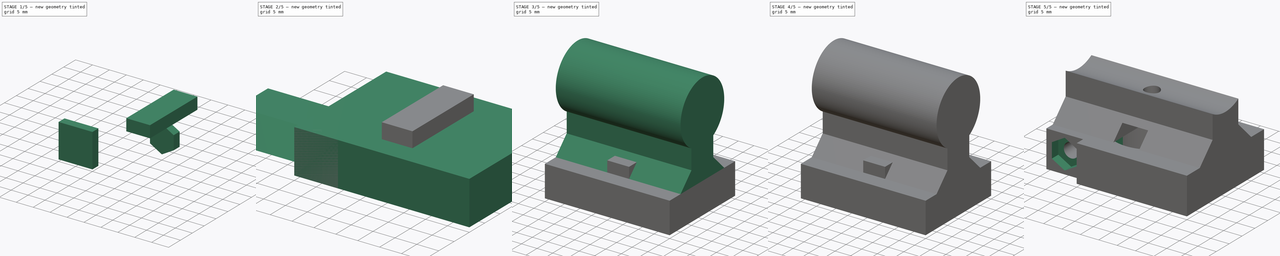
[diagram: build sequence overview — one tinted view per stage of 5, left to right]
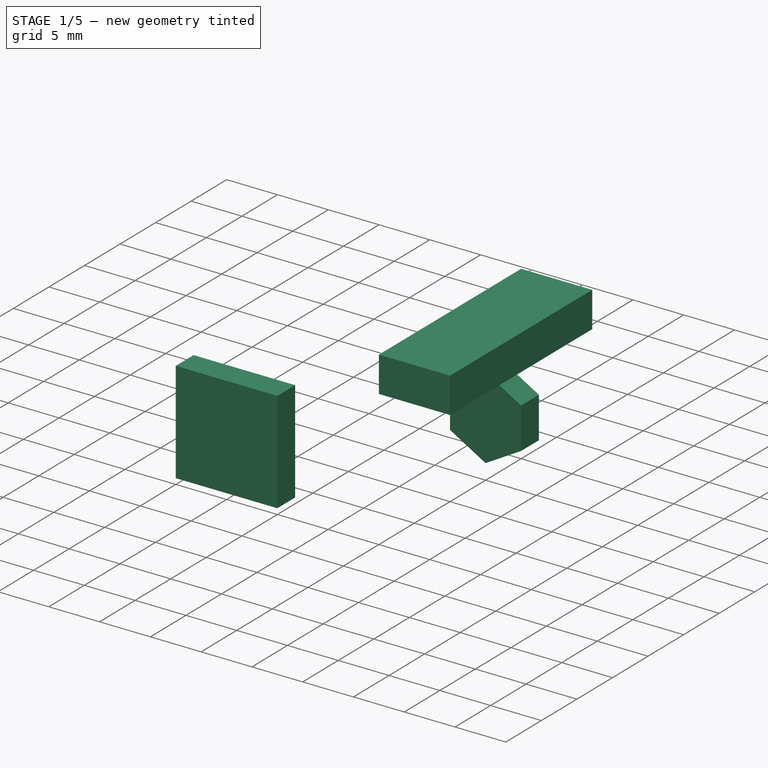
[diagram: stage 1 of 5 — iso view after this stage's code; geometry added in this stage tinted green]
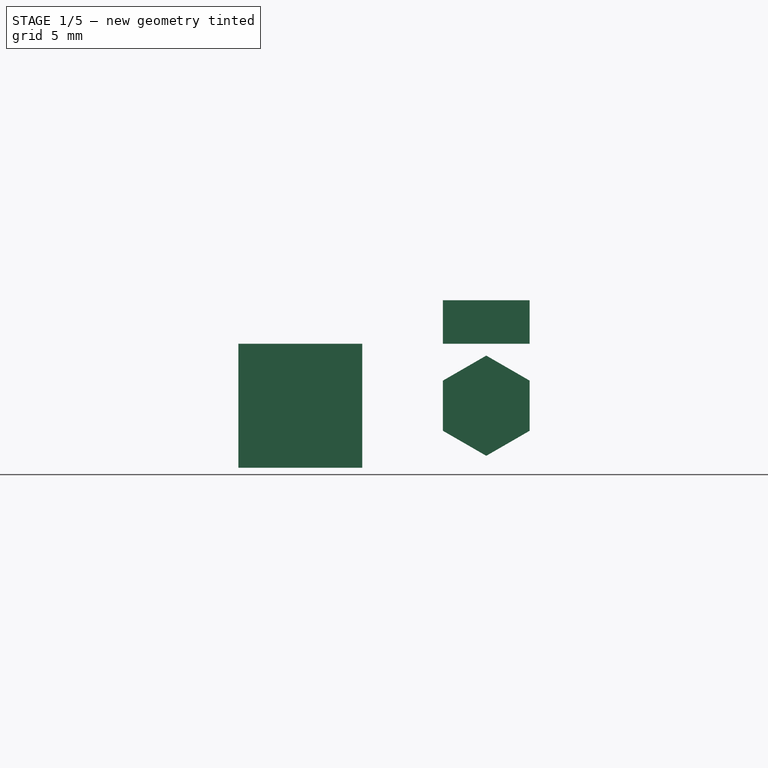
[diagram: stage 1 of 5 — front view after this stage's code; geometry added in this stage tinted green]
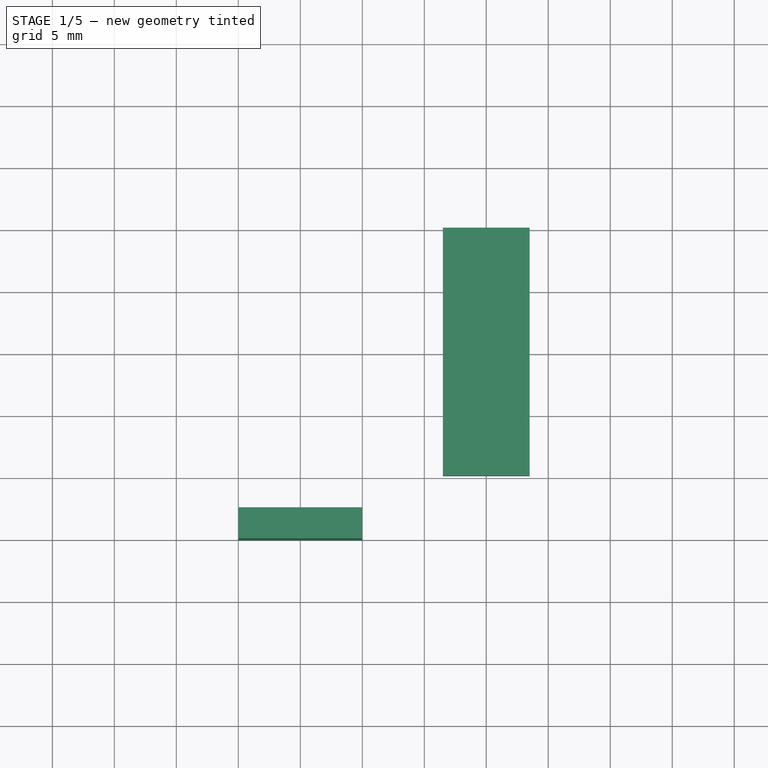
[diagram: stage 1 of 5 — top view after this stage's code; geometry added in this stage tinted green]
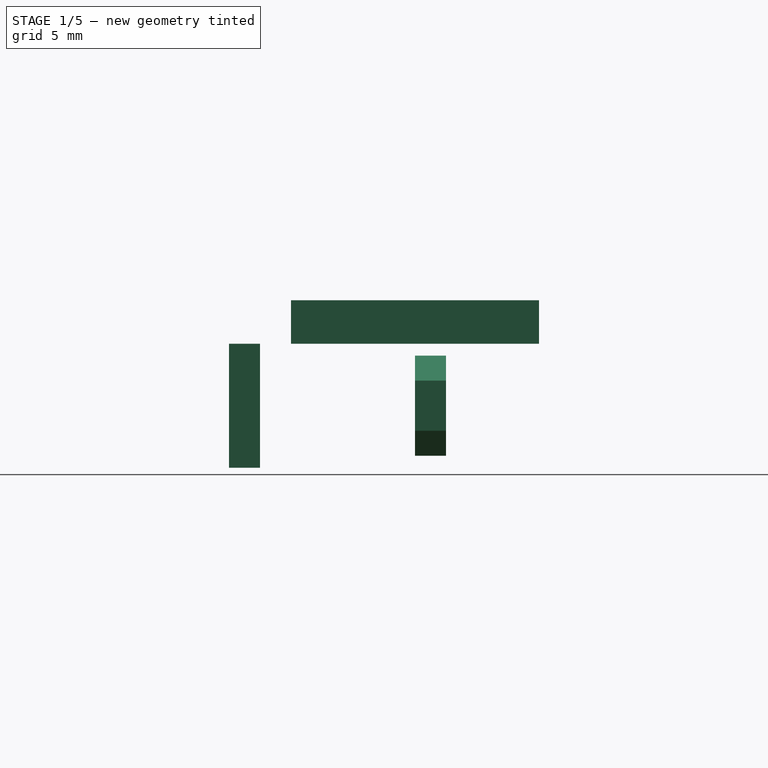
[diagram: stage 1 of 5 — right view after this stage's code; geometry added in this stage tinted green]
FCSTD DOCUMENT  (FreeCAD 0.17R13522 (Git))
Label: connector-sleeper
License: All rights reserved
LicenseURL: http://en.wikipedia.org/wiki/All_rights_reserved
objects: Part::Box×6, Part::Cylinder×4, Sketcher::SketchObject×2, PartDesign::Pad×2, PartDesign::Body×2, Part::MultiFuse×2, Part::Cut×1
note: 21 computed .brp shape members not serialized (recipe doc carries the construction recipe); baked Part::Feature solids carry a one-line shape summary decoded from their .brp

FEATURE [Part::Box] Box009  label="Screw Gap002"
  AttacherType = Attacher::AttachEngine3D
  Height = 10
  Length = 10
  Placement = pos=(-20,-15,-5) rot=(0,0,1;0rad)
  Width = 2.5
FEATURE [Sketcher::SketchObject] Sketch
  MapMode = 5
  Placement = pos=(0,0,0) rot=(1,0,0;1.5708rad)
  Support = -> [XZ_Plane]
  sketch-geometry (7):
    g0: LineSegment StartX=0 StartY=-4.04145 StartZ=0 EndX=3.5 EndY=-2.02073 EndZ=0
    g1: LineSegment StartX=3.5 StartY=-2.02073 StartZ=0 EndX=3.5 EndY=2.02073 EndZ=0
    g2: LineSegment StartX=3.5 StartY=2.02073 StartZ=0 EndX=0 EndY=4.04145 EndZ=0
    g3: LineSegment StartX=0 StartY=4.04145 StartZ=0 EndX=-3.5 EndY=2.02073 EndZ=0
    g4: LineSegment StartX=-3.5 StartY=2.02073 StartZ=0 EndX=-3.5 EndY=-2.02073 EndZ=0
    g5: LineSegment StartX=-3.5 StartY=-2.02073 StartZ=0 EndX=0 EndY=-4.04145 EndZ=0
    g6: Circle [constr] CenterX=0 CenterY=0 CenterZ=0 NormalX=0 NormalY=0 NormalZ=1 AngleXU=0 Radius=4.04145
  constraints (17):
    c: Coincident(g0,g1)
    c: Coincident(g1,g2)
    c: Coincident(g2,g3)
    c: Coincident(g3,g4)
    c: Coincident(g4,g5)
    c: Coincident(g5,g0)
    c: Equal(g0, g1-g5) x5
    c: PointOnObject(g0,g6)
    c: PointOnObject(g1,g6)
    c: PointOnObject(g2,g6)
    c: PointOnObject(g3,g6)
    c: PointOnObject(g4,g6)
    c: PointOnObject(g5,g6)
    c: PointOnObject(g6,g-1)
    c: Coincident(g-1,g6)
    c: DistanceY(g3,g1) = 0
    c: DistanceX(g3,g1) = 7
FEATURE [PartDesign::Pad] Pad
  Length = 2.5
  Length2 = 100
  Placement = pos=(0,0,0) rot=(1,0,0;1.5708rad)
  Profile = -> Sketch
  Reversed = true
  Type = 0
FEATURE [PartDesign::Body] Body
  Group = -> [Sketch,Pad]
  Origin = -> Origin
  Placement = pos=(-15,-12.5,0) rot=(0,0,1;0rad)
  Tip = -> Pad
FEATURE [Part::Box] Box010  label="Cube"
  AttacherType = Attacher::AttachEngine3D
  Height = 3.5
  Length = 7
  Placement = pos=(-3.5,-10,5) rot=(0,0,1;0rad)
  Width = 20
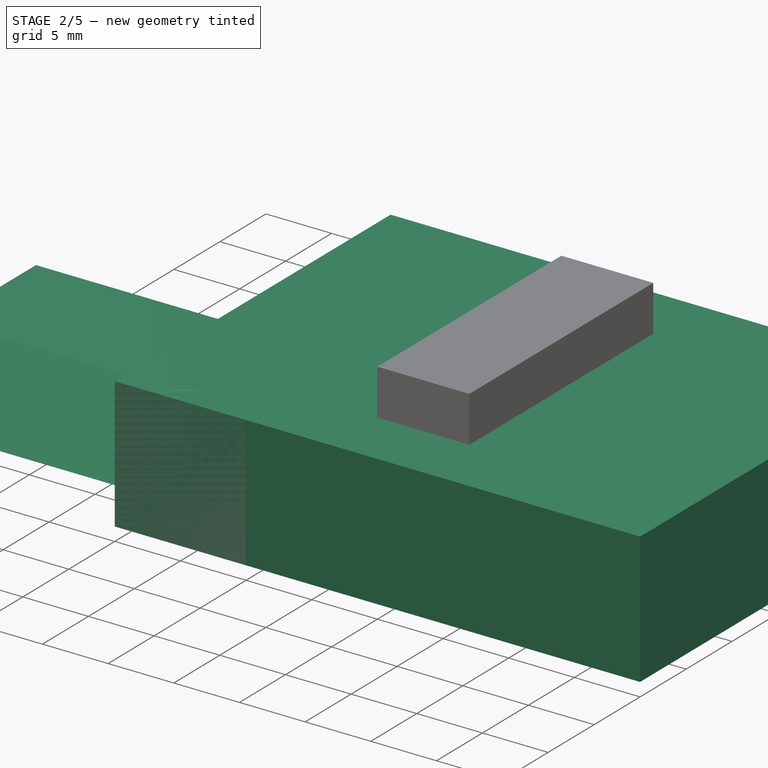
[diagram: stage 2 of 5 — iso view after this stage's code; geometry added in this stage tinted green]
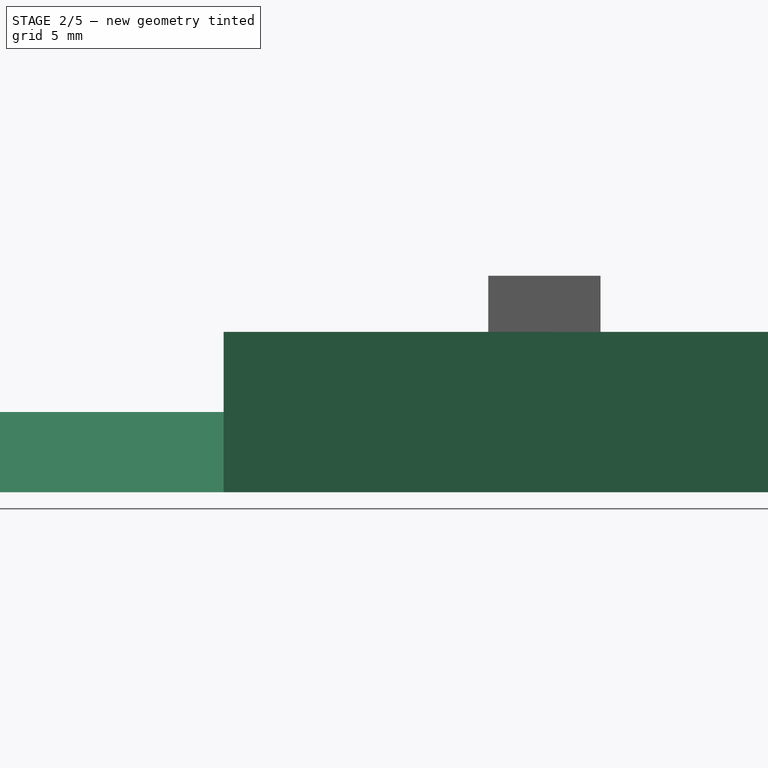
[diagram: stage 2 of 5 — front view after this stage's code; geometry added in this stage tinted green]
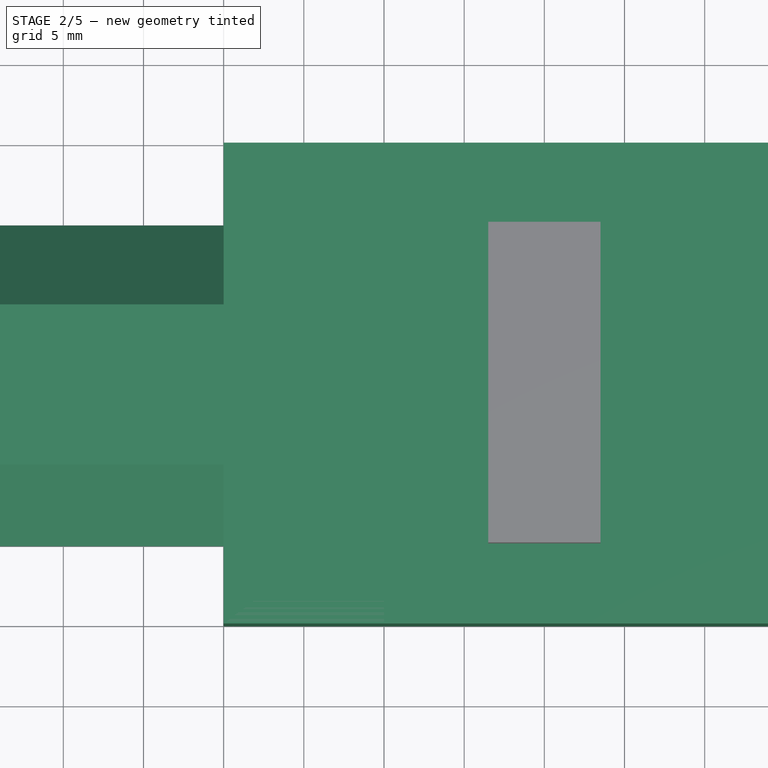
[diagram: stage 2 of 5 — top view after this stage's code; geometry added in this stage tinted green]
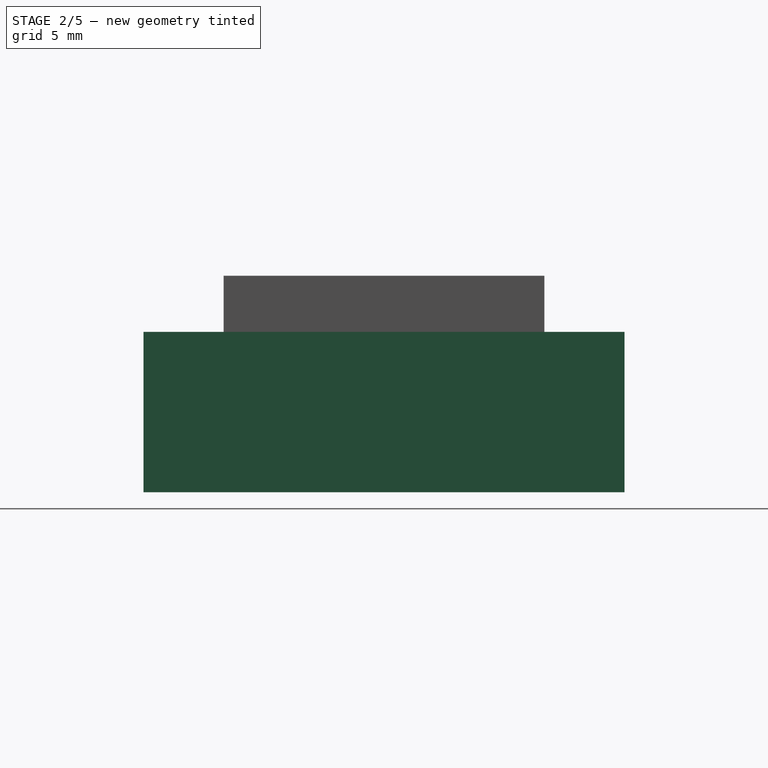
[diagram: stage 2 of 5 — right view after this stage's code; geometry added in this stage tinted green]
FEATURE [Sketcher::SketchObject] Sketch001
  MapMode = 5
  Placement = pos=(0,0,0) rot=(0.57735,0.57735,0.57735;2.0944rad)
  Support = -> [YZ_Plane001]
  sketch-geometry (4):
    g0: LineSegment StartX=5 StartY=0 StartZ=0 EndX=10 EndY=-5 EndZ=0
    g1: LineSegment StartX=10 StartY=-5 StartZ=0 EndX=-10 EndY=-5 EndZ=0
    g2: LineSegment StartX=-10 StartY=-5 StartZ=0 EndX=-5 EndY=0 EndZ=0
    g3: LineSegment StartX=-5 StartY=0 StartZ=0 EndX=5 EndY=0 EndZ=0
  constraints (12):
    c: Coincident(g1,g2)
    c: Coincident(g2,g3)
    c: Coincident(g0,g3)
    c: Horizontal(g3)
    c: Perpendicular(g0,g2)
    c: Angle(g0,g1) = 0.785398
    c: DistanceX(g2,g0) = 10
    c: Coincident(g1,g0)
    c: DistanceY(g0,g1) = 0
    c: DistanceY(g0,g0) = 5
    c: DistanceY(g0,g-1) = 0
    c: DistanceX(g-1,g0) = 5
FEATURE [PartDesign::Pad] Pad001
  Length = 40
  Length2 = 100
  Placement = pos=(0,0,0) rot=(0.57735,0.57735,0.57735;2.0944rad)
  Profile = -> Sketch001
  Reversed = true
  Type = 0
FEATURE [PartDesign::Body] Body001  label="Rail Support Prism"
  Group = -> [Sketch001,Pad001]
  Origin = -> Origin001
  Placement = pos=(20,0,10) rot=(0,0,1;0rad)
  Tip = -> Pad001
FEATURE [Part::Box] Box007  label="Base Cube"
  AttacherType = Attacher::AttachEngine3D
  Height = 10
  Length = 40
  Placement = pos=(-20,-15,-5) rot=(0,0,1;0rad)
  Width = 30
FEATURE [Part::Box] Box008  label="Screw Gap001"
  AttacherType = Attacher::AttachEngine3D
  Height = 10
  Length = 10
  Placement = pos=(-20,12.5,-5) rot=(0,0,1;0rad)
  Width = 2.5
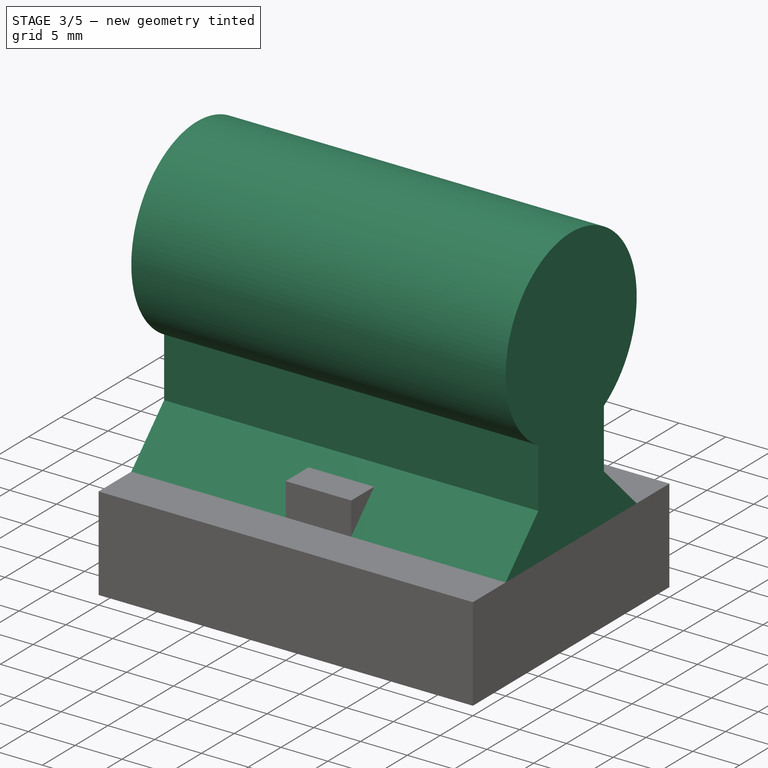
[diagram: stage 3 of 5 — iso view after this stage's code; geometry added in this stage tinted green]
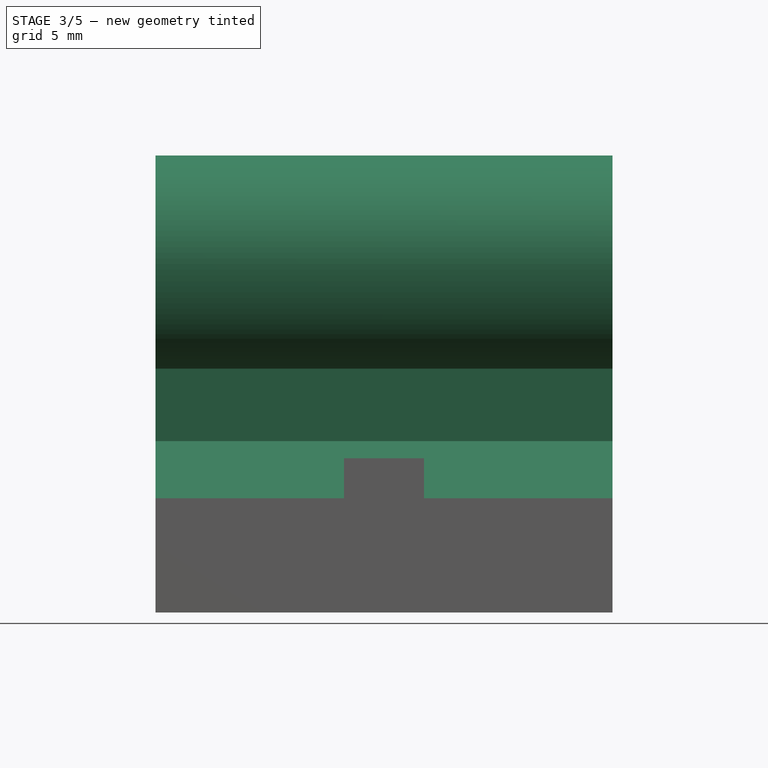
[diagram: stage 3 of 5 — front view after this stage's code; geometry added in this stage tinted green]
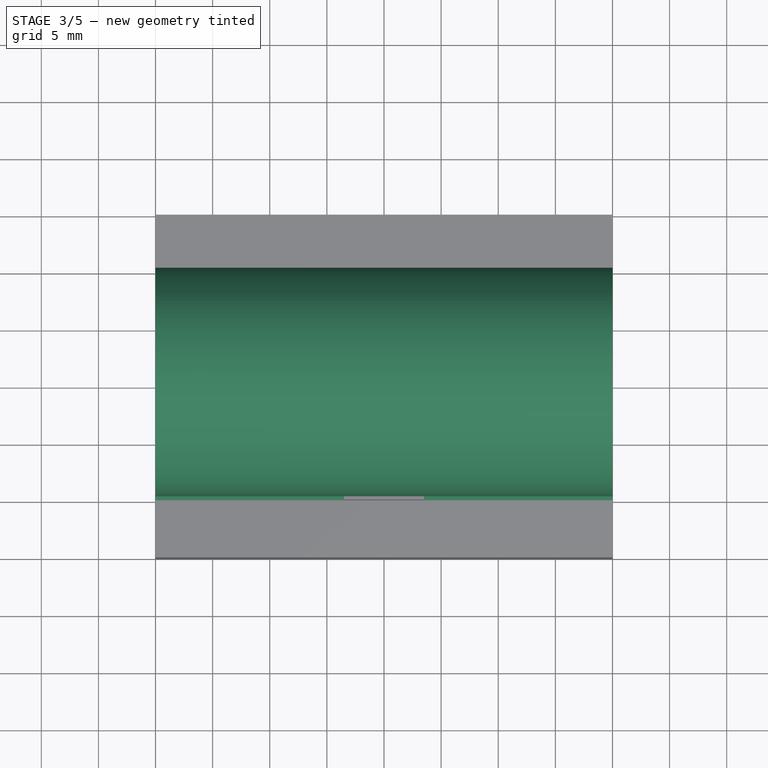
[diagram: stage 3 of 5 — top view after this stage's code; geometry added in this stage tinted green]
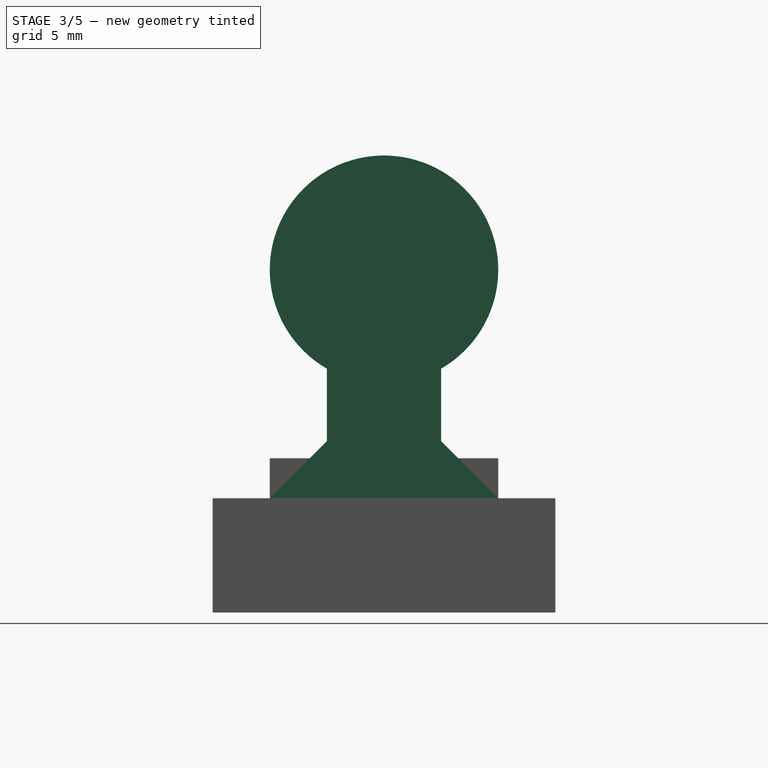
[diagram: stage 3 of 5 — right view after this stage's code; geometry added in this stage tinted green]
FEATURE [Part::Box] Box  label="Rail Support Cube"
  AttacherType = Attacher::AttachEngine3D
  Height = 12
  Length = 40
  Placement = pos=(-20,-5,5) rot=(0,0,1;0rad)
  Width = 10
FEATURE [Part::Cylinder] Cylinder007  label="Rail"
  Angle = 360
  AttacherType = Attacher::AttachEngine3D
  Height = 40
  Placement = pos=(20,0,25) rot=(0.57735,0.57735,-0.57735;4.18879rad)
  Radius = 10
FEATURE [Part::MultiFuse] Fusion002  label="Positive Fusion"
  Shapes = -> [Box,Body001,Box007]
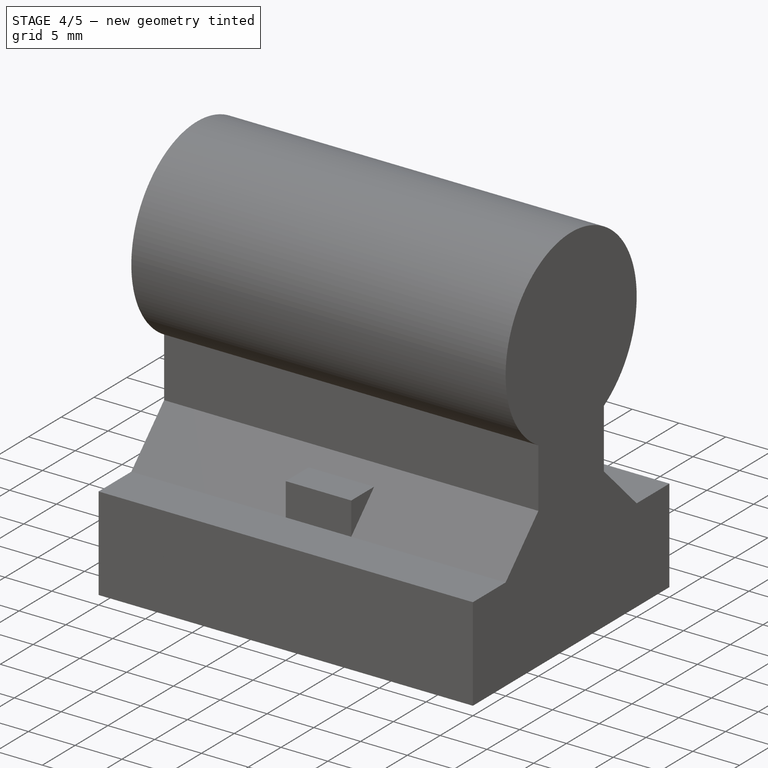
[diagram: stage 4 of 5 — iso view after this stage's code; geometry added in this stage tinted green]
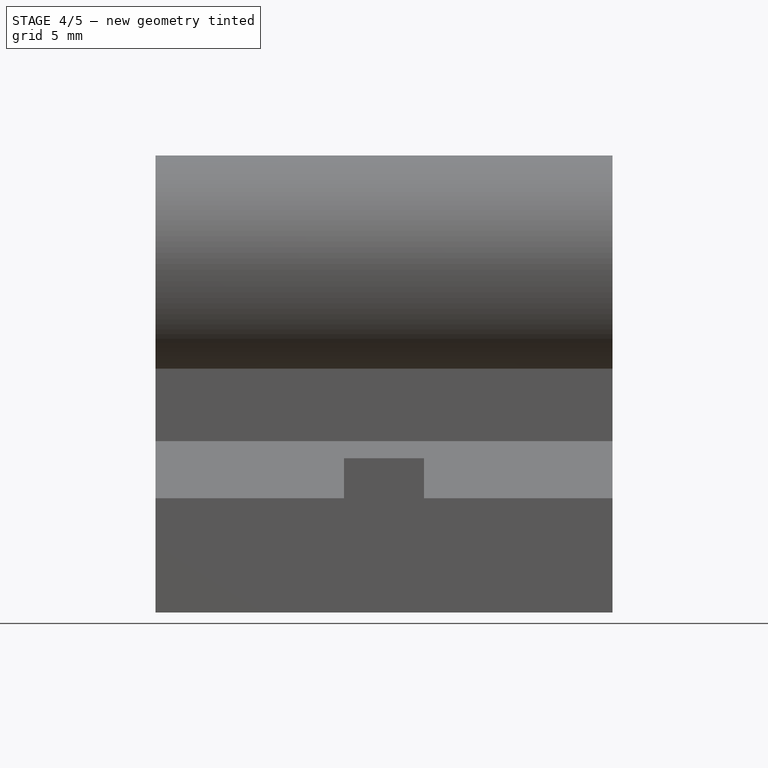
[diagram: stage 4 of 5 — front view after this stage's code; geometry added in this stage tinted green]
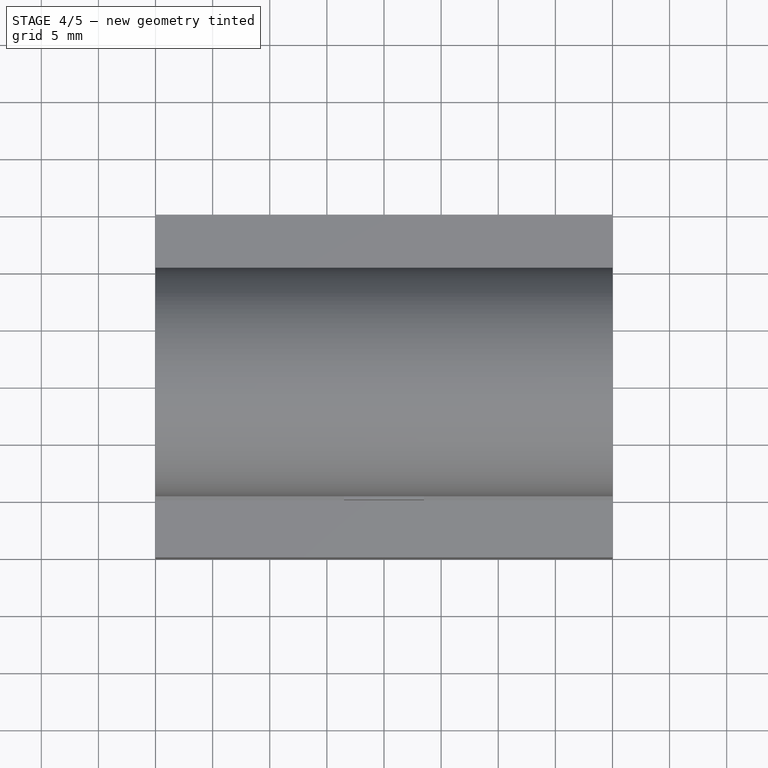
[diagram: stage 4 of 5 — top view after this stage's code; geometry added in this stage tinted green]
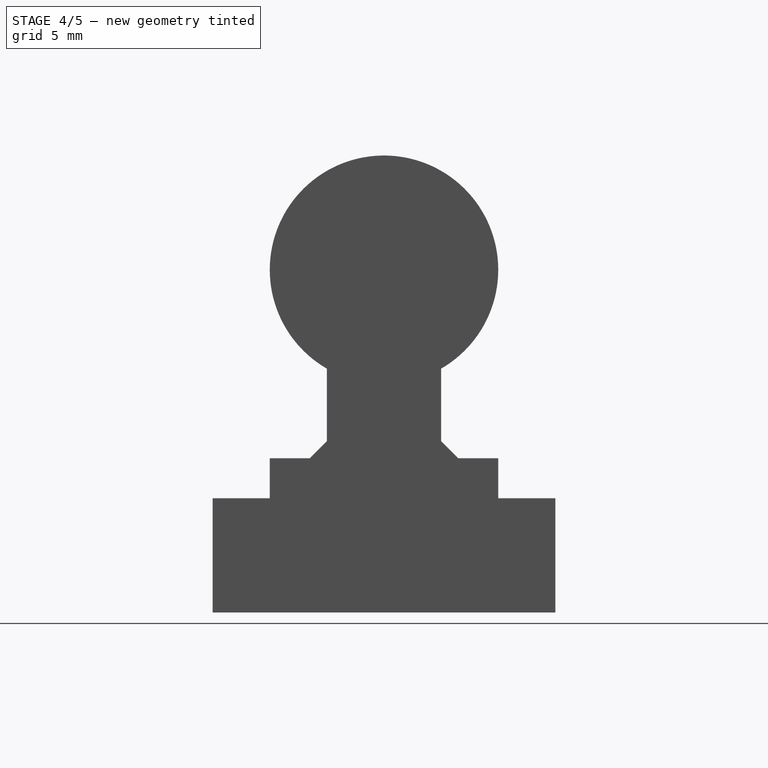
[diagram: stage 4 of 5 — right view after this stage's code; geometry added in this stage tinted green]
FEATURE [Part::Cylinder] Cylinder001  label="Pipe"
  Angle = 360
  AttacherType = Attacher::AttachEngine3D
  Height = 10
  Placement = pos=(0,0,-5) rot=(0,0,1;0rad)
  Radius = 10
FEATURE [Part::Cylinder] Cylinder003  label="Screw"
  Angle = 360
  AttacherType = Attacher::AttachEngine3D
  Height = 30
  Placement = pos=(-15,-15,0) rot=(-1,0,0;1.5708rad)
  Radius = 2
FEATURE [Part::Cylinder] Cylinder  label="Rail Screw"
  Angle = 360
  AttacherType = Attacher::AttachEngine3D
  Height = 30
  Placement = pos=(0,0,-5) rot=(0,0,1;0rad)
  Radius = 2
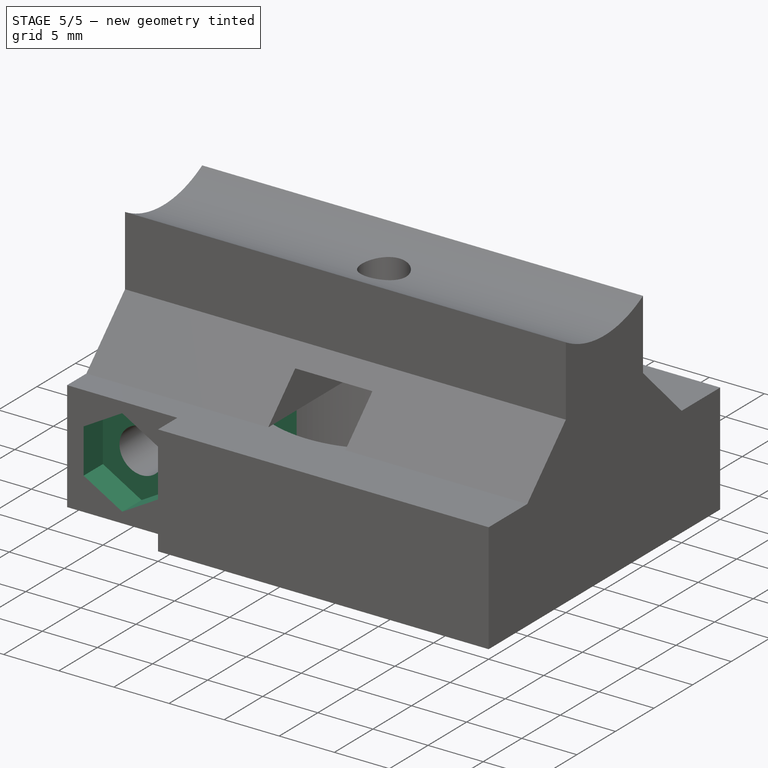
[diagram: stage 5 of 5 — iso view after this stage's code; geometry added in this stage tinted green]
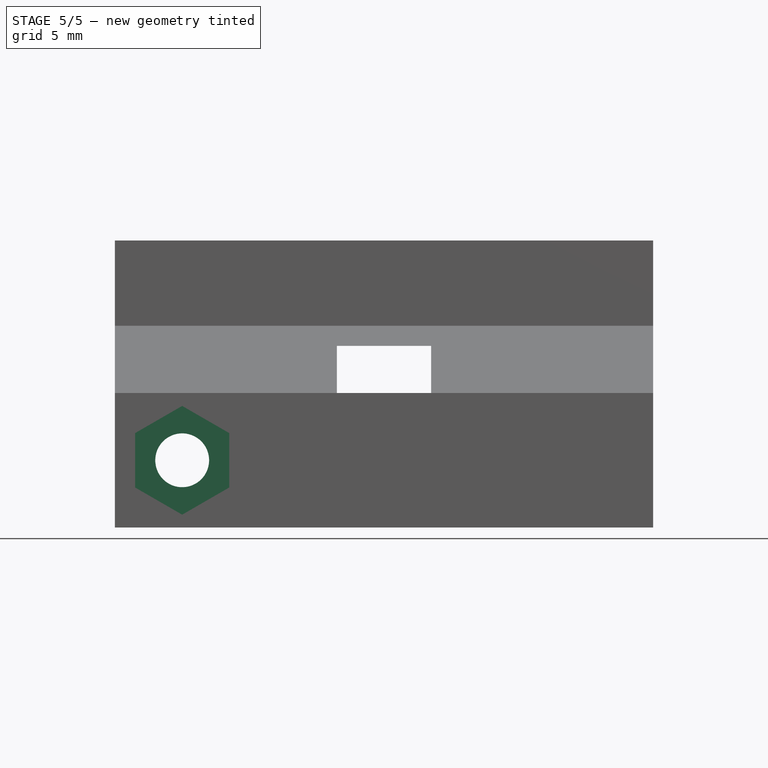
[diagram: stage 5 of 5 — front view after this stage's code; geometry added in this stage tinted green]
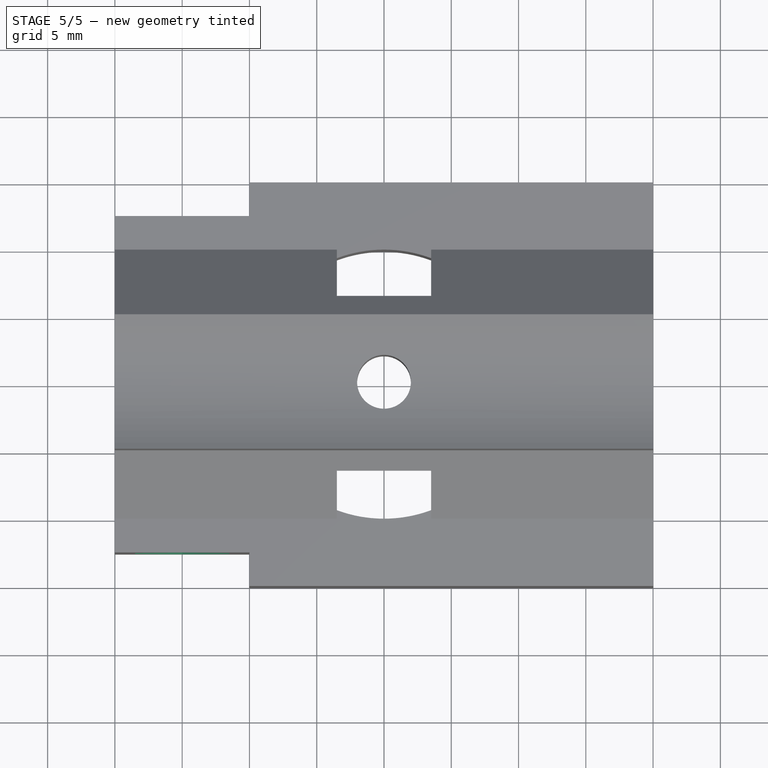
[diagram: stage 5 of 5 — top view after this stage's code; geometry added in this stage tinted green]
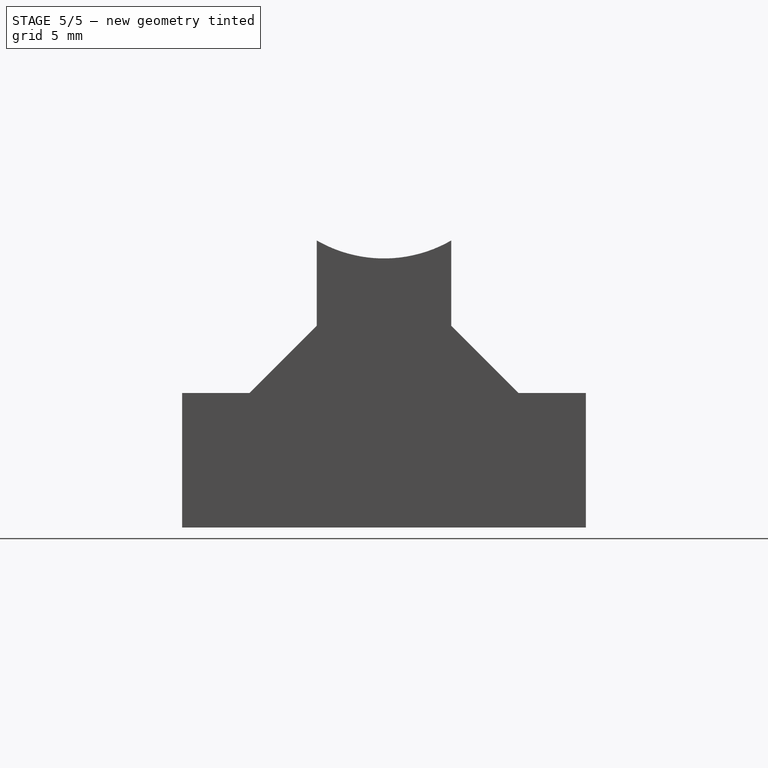
[diagram: stage 5 of 5 — right view after this stage's code; geometry added in this stage tinted green]
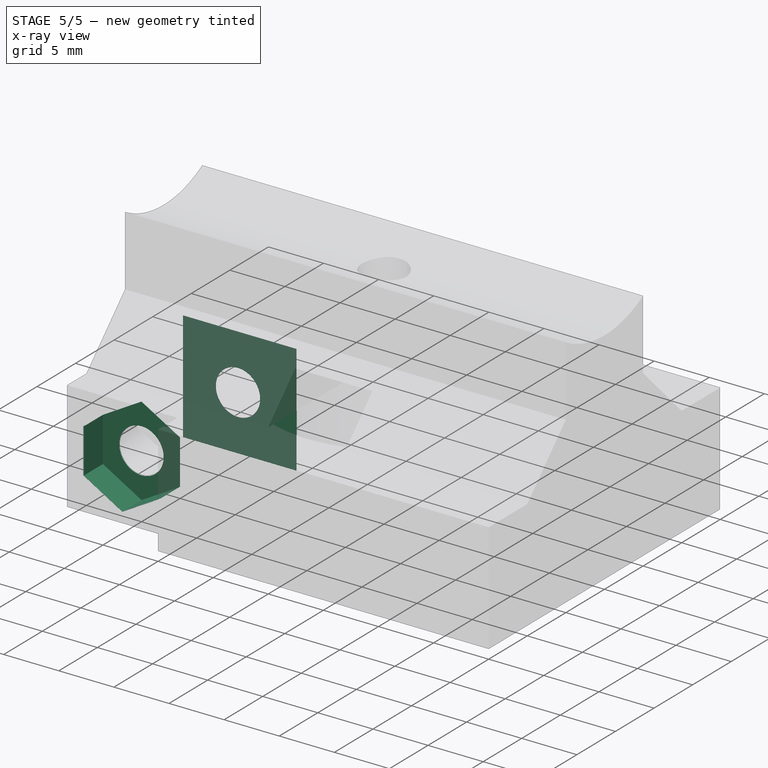
[diagram: stage 5 of 5 — x-ray composite at the iso view; earlier geometry ghosted, this stage's added geometry solid]
FEATURE [Part::Box] Box002  label="Screw Gap"
  AttacherType = Attacher::AttachEngine3D
  Height = 10
  Length = 12.5
  Placement = pos=(-20,-2.5,-5) rot=(0,0,1;0rad)
  Width = 5
FEATURE [Part::MultiFuse] Fusion  label="Negative Fusion"
  Shapes = -> [Cylinder001,Box002,Cylinder003,Cylinder,Cylinder007,Box008,Box009,Body,Box010]
FEATURE [Part::Cut] Cut
  Base = -> Fusion002
  Tool = -> Fusion
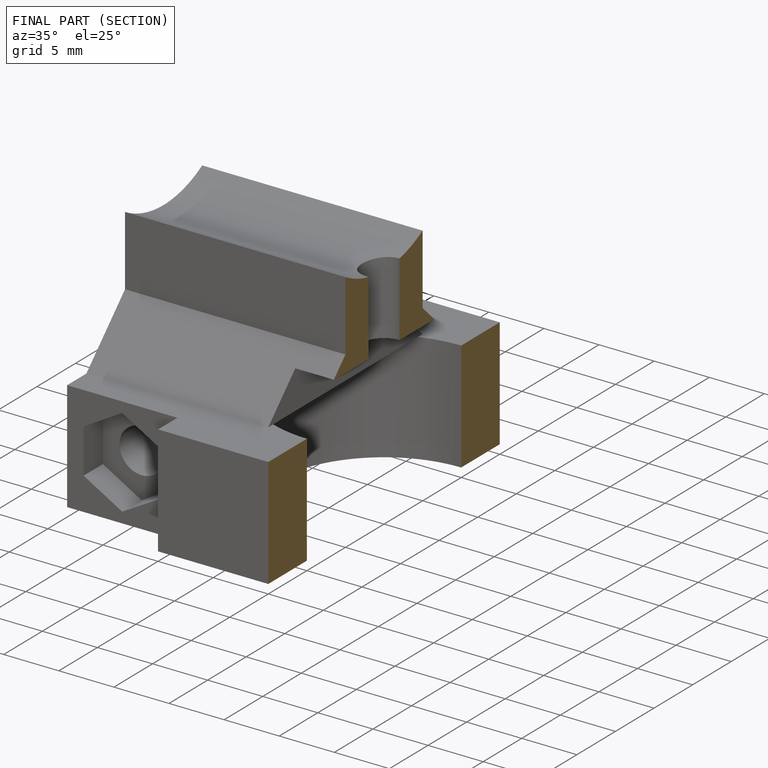
[diagram: finished part — half-section view (interior)]
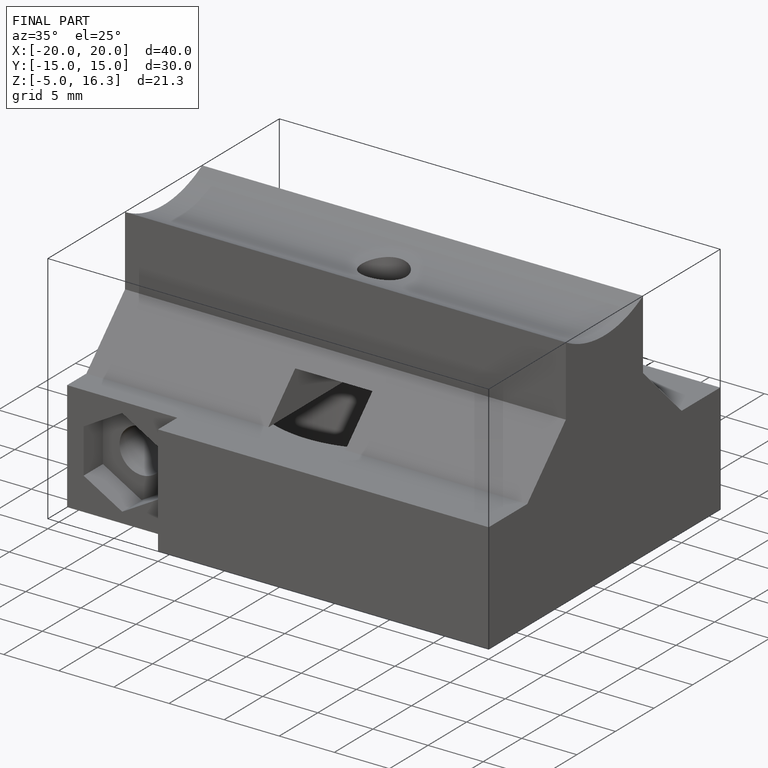
[diagram: finished part — iso view with bounding-box wireframe]
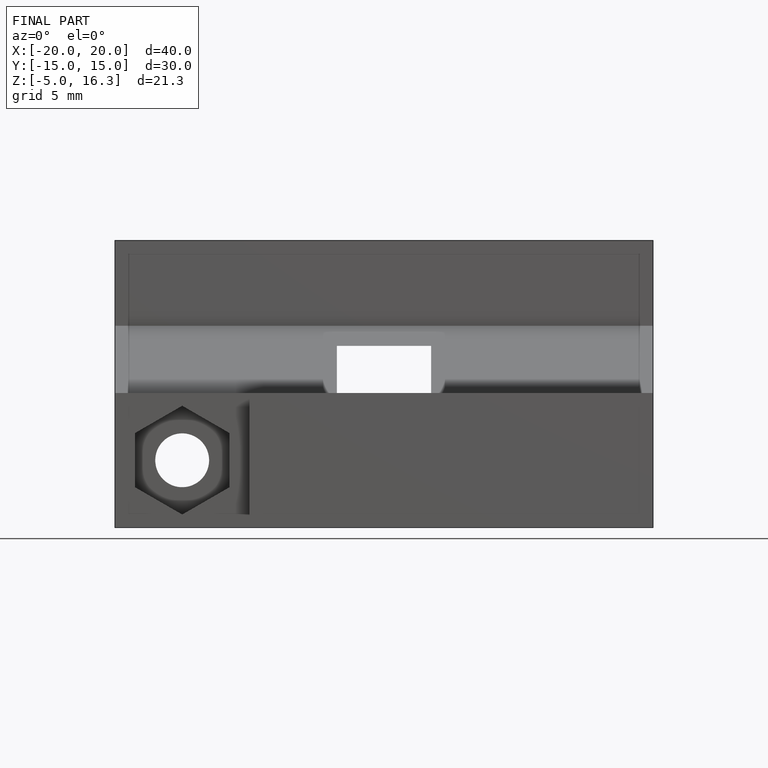
[diagram: finished part — front view with bounding-box wireframe]
